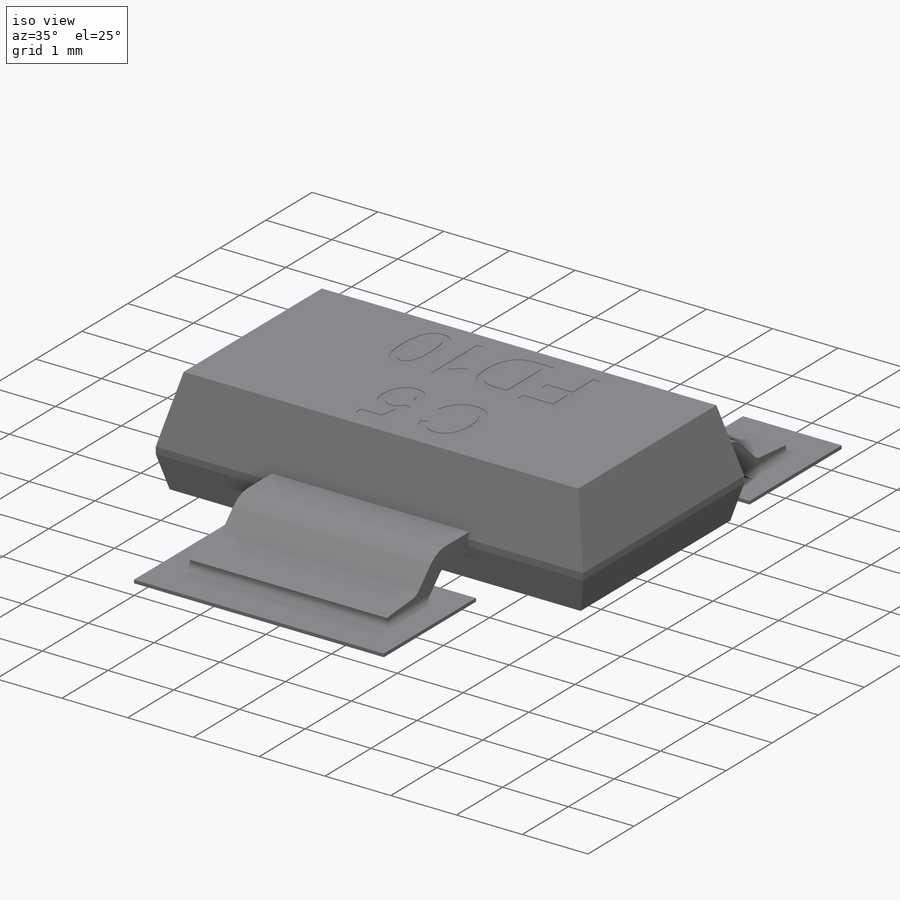
[diagram: iso view]
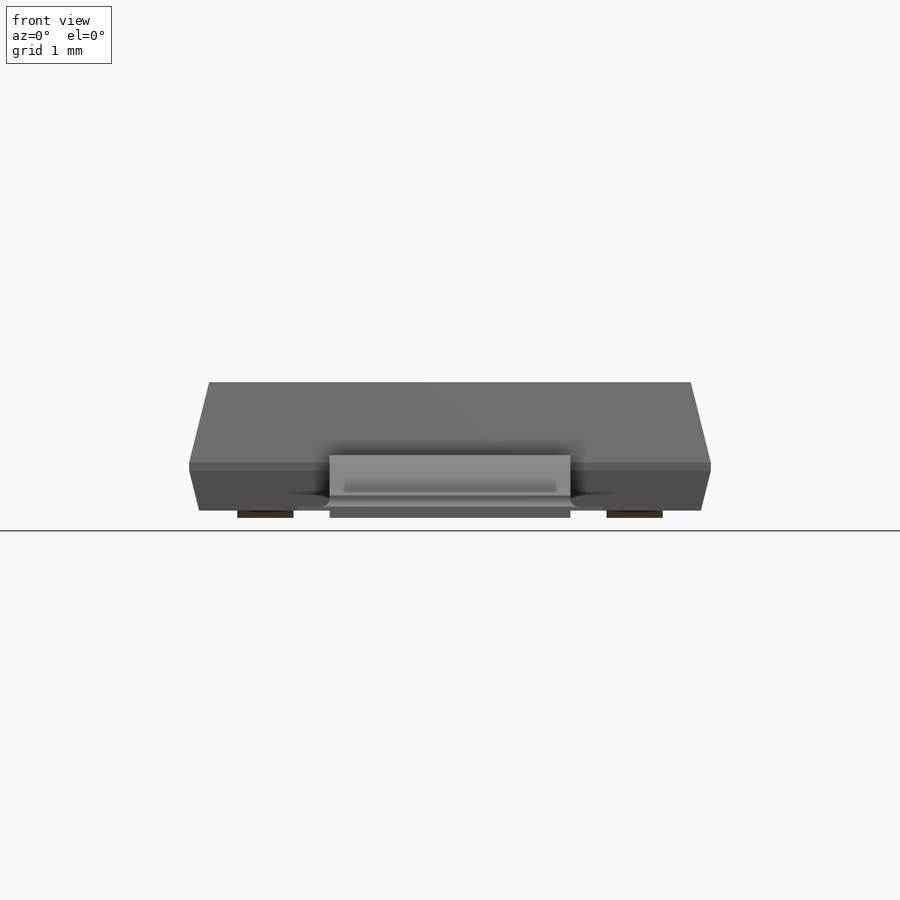
[diagram: front view]
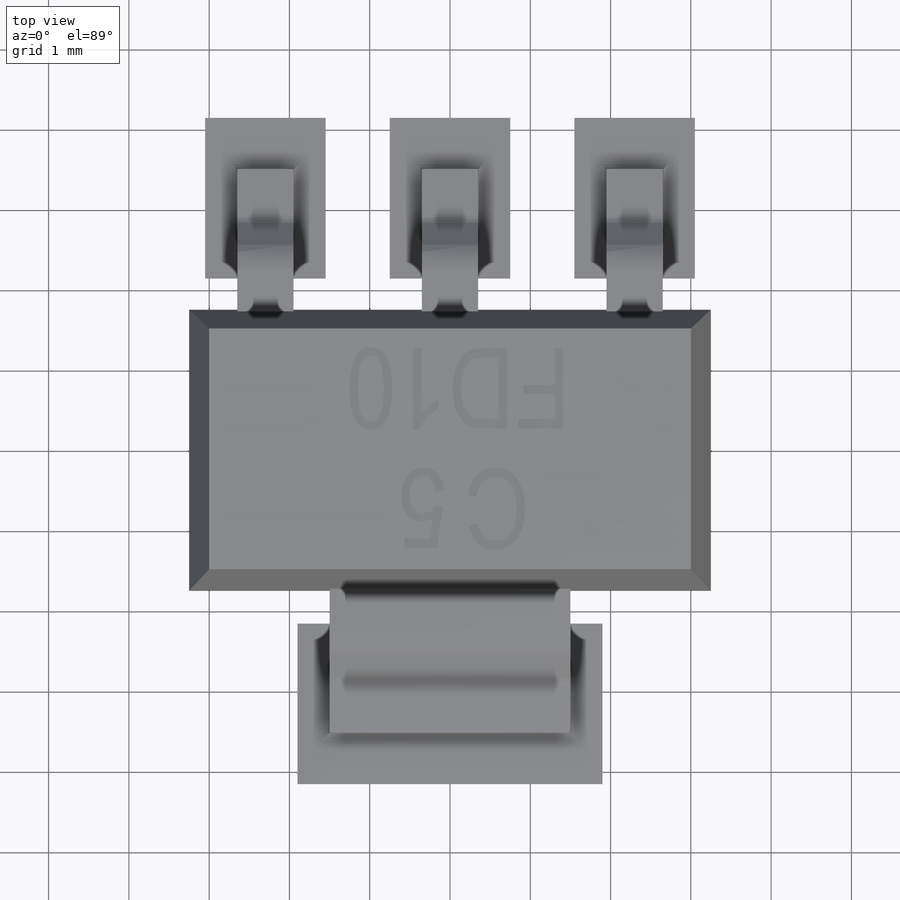
[diagram: top view]
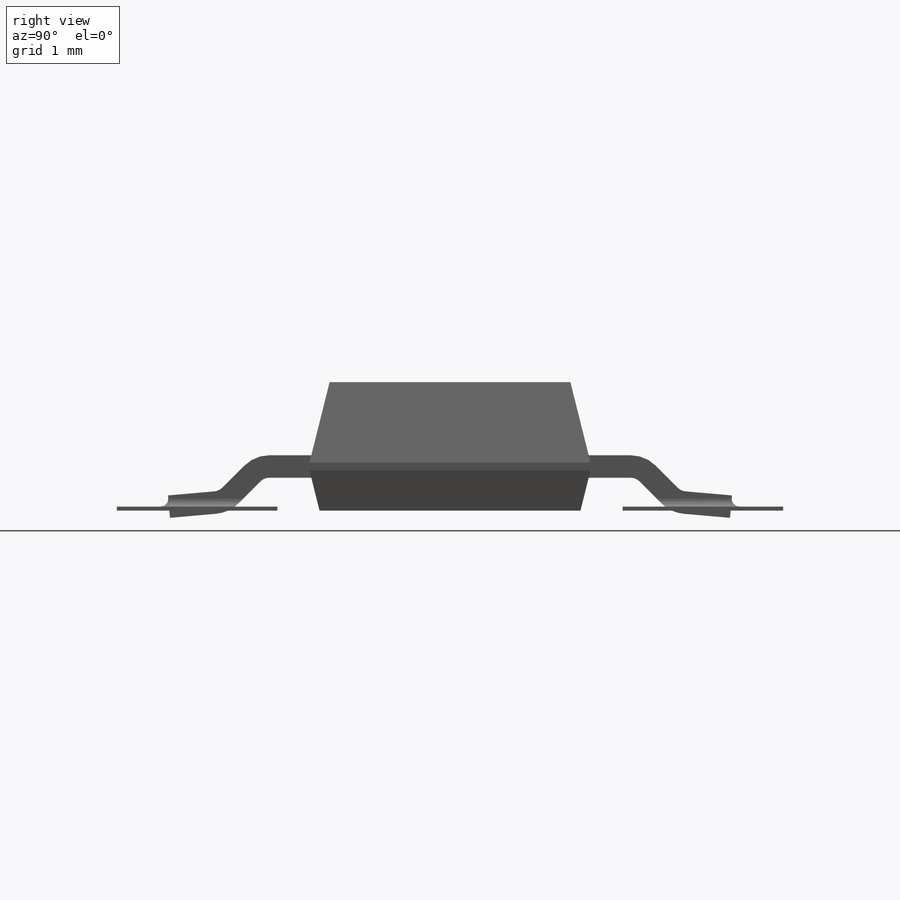
[diagram: right view]
SOLIDWORKS PART (.sldprt)
format: sldprt  version: not decoded by parser v0  size: 488,448 bytes
history: native  units: mm
features: sketch x6, extrude x2, chamfer x2, cut_extrude x2, material x1, plane x1, pattern_linear x1, fillet x1 (+11 scaffold rows collapsed)
feature tree (27):
  scaffold x11  (default folders/planes/origin — collapsed)
  material  "Pure Silver"
  sketch  "Sketch1"  dims[D1=6.5mm D2=3.25mm D3=3.5mm D4=1.75mm]
  extrude  "Boss-Extrude1"  Depth=1.6mm
  chamfer  "Chamfer1"  Distance=1mm
  chamfer  "Chamfer2"  Distance=0.125mm
  sketch  "Sketch2"  dims[c1.D4=0.3mm c1.D1=0.55mm c1.D2=3.5mm c1.D3=0.05mm c1.D5=~0.311643mm c2.D5=45.0deg c2.D6=~0.674032mm c3.D6=5.0deg c3.D7=2.25mm c3.D1=3.0mm c3.D5=0.28mm c4.D6=10.0mm c4.D7=5.0mm]
  plane  "Plane1"  Offset=2.3mm
  sketch  "Sketch3"  dims[c1.D2=0.3mm c1.D1=3.5mm c1.D3=2.25mm c1.D4=~0.314496mm c2.D4=45.0deg c2.D1=0.7mm c2.D5=0.28mm c2.D6=1.0mm c2.D7=5.0mm]
  pattern_linear  "LPattern1"  Count1=3 Count2=1 Spacing1=2.3mm Spacing2=10mm
  sketch  "Sketch4"  dims[D1=3.15mm D2=1.0mm D3=3.8mm D4=1.9mm D5=1.5mm D6=2.3mm D7=2.3mm D8=3.15mm D9=0.75mm D10=2.0mm]
  extrude  "Boss-Extrude2"  Depth=0.05mm
  fillet  "Fillet1"  Radius=0.1mm
  sketch  "Sketch5"  dims[c1.D1=~3.199044mm c2.D1=90.0deg c3.D1=1.0mm c3.D2=0.25mm]
  sketch  "Sketch6"  dims[D1=1.25mm D2=1.5mm]
  cut_extrude  "Cut-Extrude1"  Depth=0.01mm
  cut_extrude  "Cut-Extrude2"  Depth=0.01mm
decode coverage: 14 of 14 modeling features carry decoded parameters
note: ~ marks probable driven/reference dimensions
note: suppression state not decoded; provenance and decode notes live in map.json
